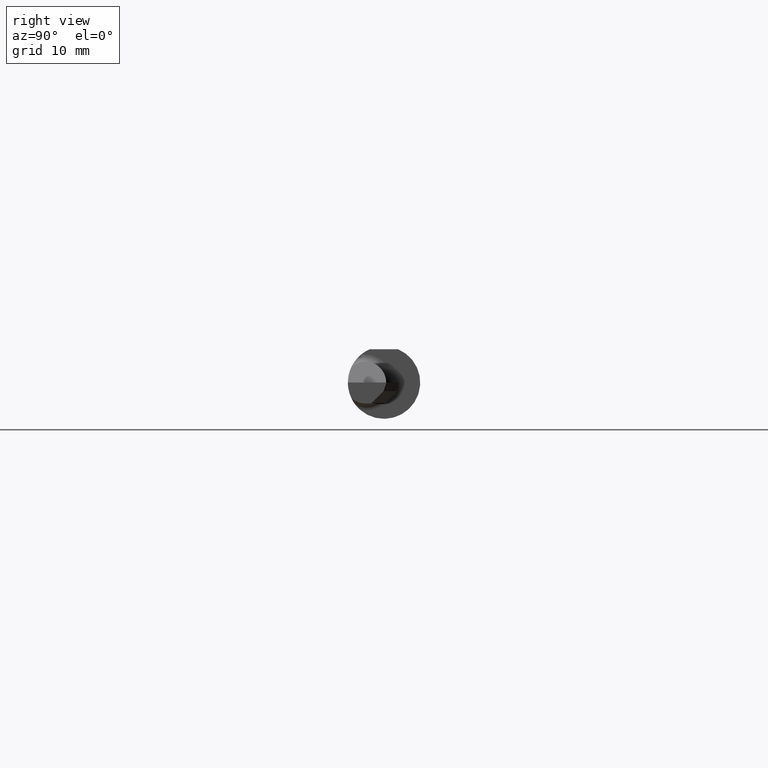
[diagram: clean part render]
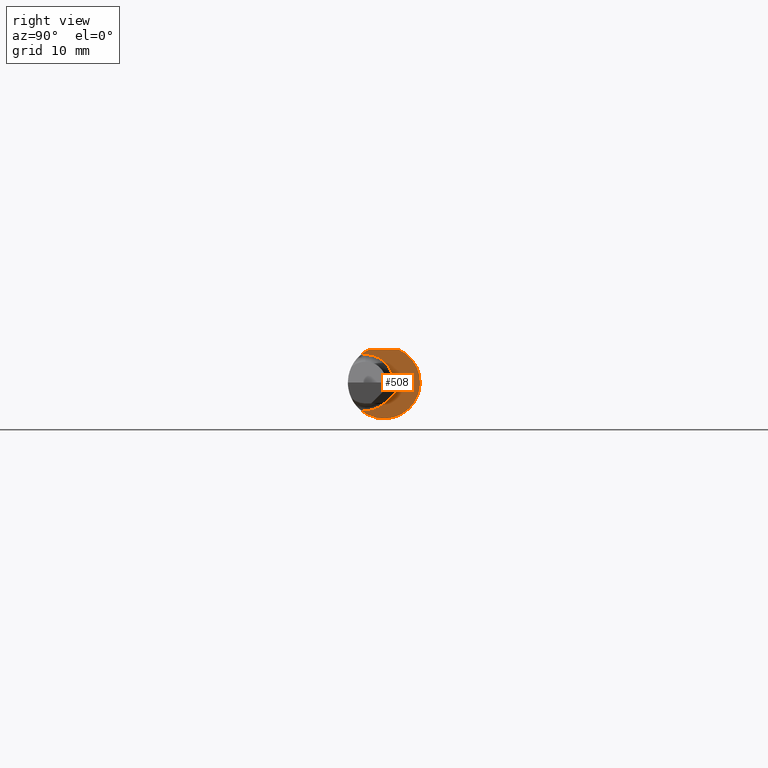
[diagram: same view with one face highlighted and labeled with its STEP entity id]
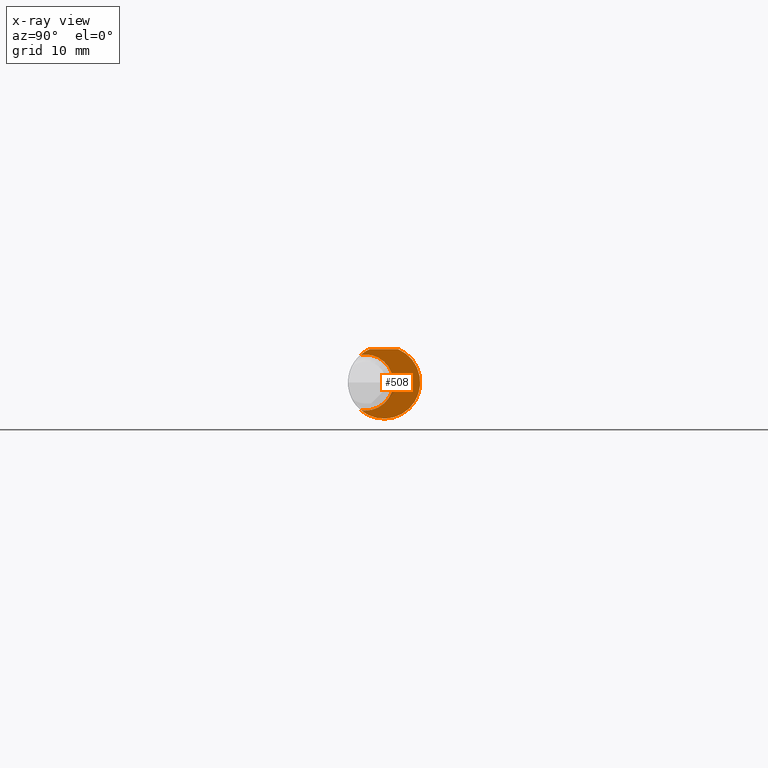
[diagram: x-ray of the same camera — body ghosted, the highlighted face saturated]
A machine part, right view. The second image highlights one B-rep face of the part: STEP entity #508.
The next image is the same camera in x-ray: the body ghosted, the highlighted face saturated — about 3% of this face is hidden behind the body in this view.
In plain terms, the highlighted planar face has unit normal (1, 0, 0).
Its self-contained STEP definition (entity closure, byte-faithful):
#18 = CARTESIAN_POINT ( 'NONE',  ( 1.925000000000000044, 0.1248500000000000026, 0.1148499999999999521 ) ) ;
#22 = CARTESIAN_POINT ( 'NONE',  ( 1.925000000000000044, 0.1248499999999999333, 0.000000000000000000 ) ) ;
#40 = AXIS2_PLACEMENT_3D ( 'NONE', #523, #396, #604 ) ;
#61 = VERTEX_POINT ( 'NONE', #251 ) ;
#68 = DIRECTION ( 'NONE',  ( 0.000000000000000000, 0.000000000000000000, -1.000000000000000000 ) ) ;
#73 = CARTESIAN_POINT ( 'NONE',  ( 1.925000000000000044, -0.08006202775636085678, 0.09579976102026406537 ) ) ;
#100 = CARTESIAN_POINT ( 'NONE',  ( 1.925000000000000044, -0.06485000000000003262, 0.000000000000000000 ) ) ;
#109 = DIRECTION ( 'NONE',  ( 0.000000000000000000, 0.000000000000000000, 1.000000000000000000 ) ) ;
#158 = CARTESIAN_POINT ( 'NONE',  ( 1.925000000000000044, 0.04895916665957469188, 0.1148499999999999521 ) ) ;
#170 = AXIS2_PLACEMENT_3D ( 'NONE', #748, #628, #68 ) ;
#180 = CARTESIAN_POINT ( 'NONE',  ( 1.925000000000000044, -0.06485000000000003262, 0.000000000000000000 ) ) ;
#188 = CARTESIAN_POINT ( 'NONE',  ( 1.925000000000000044, -0.06485000000000003262, 0.000000000000000000 ) ) ;
#191 = DIRECTION ( 'NONE',  ( -1.000000000000000000, -0.000000000000000000, -0.000000000000000000 ) ) ;
#217 = EDGE_CURVE ( 'NONE', #625, #61, #341, .T. ) ;
#231 = EDGE_CURVE ( 'NONE', #370, #625, #588, .T. ) ;
#251 = CARTESIAN_POINT ( 'NONE',  ( 1.925000000000000044, -0.08006202775636085678, -0.09579976102026406537 ) ) ;
#260 = VERTEX_POINT ( 'NONE', #534 ) ;
#265 = DIRECTION ( 'NONE',  ( -1.000000000000000000, -0.000000000000000000, -0.000000000000000000 ) ) ;
#275 = DIRECTION ( 'NONE',  ( 0.000000000000000000, 1.000000000000000000, 0.000000000000000000 ) ) ;
#293 = EDGE_LOOP ( 'NONE', ( #375, #611, #812, #792, #744, #664 ) ) ;
#305 = DIRECTION ( 'NONE',  ( 0.000000000000000000, 0.000000000000000000, -1.000000000000000000 ) ) ;
#341 = CIRCLE ( 'NONE', #413, 0.09699999999999998901 ) ;
#357 = AXIS2_PLACEMENT_3D ( 'NONE', #22, #780, #305 ) ;
#370 = VERTEX_POINT ( 'NONE', #706 ) ;
#375 = ORIENTED_EDGE ( 'NONE', *, *, #741, .T. ) ;
#384 = AXIS2_PLACEMENT_3D ( 'NONE', #180, #191, #899 ) ;
#385 = AXIS2_PLACEMENT_3D ( 'NONE', #100, #710, #573 ) ;
#386 = EDGE_CURVE ( 'NONE', #260, #561, #549, .T. ) ;
#396 = DIRECTION ( 'NONE',  ( 1.000000000000000000, 0.000000000000000000, 0.000000000000000000 ) ) ;
#413 = AXIS2_PLACEMENT_3D ( 'NONE', #188, #265, #109 ) ;
#442 = VERTEX_POINT ( 'NONE', #73 ) ;
#469 = CIRCLE ( 'NONE', #40, 0.1248500000000000026 ) ;
#508 = ADVANCED_FACE ( 'NONE', ( #857 ), #570, .T. ) ;
#523 = CARTESIAN_POINT ( 'NONE',  ( 1.925000000000000044, 0.000000000000000000, 0.000000000000000000 ) ) ;
#527 = EDGE_CURVE ( 'NONE', #442, #370, #705, .T. ) ;
#532 = CIRCLE ( 'NONE', #170, 0.1248500000000000026 ) ;
#534 = CARTESIAN_POINT ( 'NONE',  ( 1.925000000000000044, -0.04895916665957478209, 0.1148499999999999521 ) ) ;
#549 = LINE ( 'NONE', #18, #732 ) ;
#561 = VERTEX_POINT ( 'NONE', #158 ) ;
#570 = PLANE ( 'NONE',  #357 ) ;
#573 = DIRECTION ( 'NONE',  ( 0.000000000000000000, 0.000000000000000000, 1.000000000000000000 ) ) ;
#588 = CIRCLE ( 'NONE', #384, 0.09699999999999998901 ) ;
#604 = DIRECTION ( 'NONE',  ( 0.000000000000000000, 0.000000000000000000, -1.000000000000000000 ) ) ;
#611 = ORIENTED_EDGE ( 'NONE', *, *, #386, .F. ) ;
#625 = VERTEX_POINT ( 'NONE', #817 ) ;
#628 = DIRECTION ( 'NONE',  ( 1.000000000000000000, 0.000000000000000000, 0.000000000000000000 ) ) ;
#664 = ORIENTED_EDGE ( 'NONE', *, *, #217, .T. ) ;
#699 = EDGE_CURVE ( 'NONE', #260, #442, #469, .T. ) ;
#705 = CIRCLE ( 'NONE', #385, 0.09699999999999998901 ) ;
#706 = CARTESIAN_POINT ( 'NONE',  ( 1.925000000000000044, -0.06485000000000004650, 0.09699999999999998901 ) ) ;
#710 = DIRECTION ( 'NONE',  ( -1.000000000000000000, -0.000000000000000000, -0.000000000000000000 ) ) ;
#732 = VECTOR ( 'NONE', #275, 39.37007874015748143 ) ;
#741 = EDGE_CURVE ( 'NONE', #61, #561, #532, .T. ) ;
#744 = ORIENTED_EDGE ( 'NONE', *, *, #231, .T. ) ;
#748 = CARTESIAN_POINT ( 'NONE',  ( 1.925000000000000044, 0.000000000000000000, 0.000000000000000000 ) ) ;
#780 = DIRECTION ( 'NONE',  ( 1.000000000000000000, 0.000000000000000000, 0.000000000000000000 ) ) ;
#792 = ORIENTED_EDGE ( 'NONE', *, *, #527, .T. ) ;
#812 = ORIENTED_EDGE ( 'NONE', *, *, #699, .T. ) ;
#817 = CARTESIAN_POINT ( 'NONE',  ( 1.925000000000000044, -0.06485000000000003262, -0.09699999999999998901 ) ) ;
#857 = FACE_OUTER_BOUND ( 'NONE', #293, .T. ) ;
#899 = DIRECTION ( 'NONE',  ( 0.000000000000000000, 0.000000000000000000, 1.000000000000000000 ) ) ;